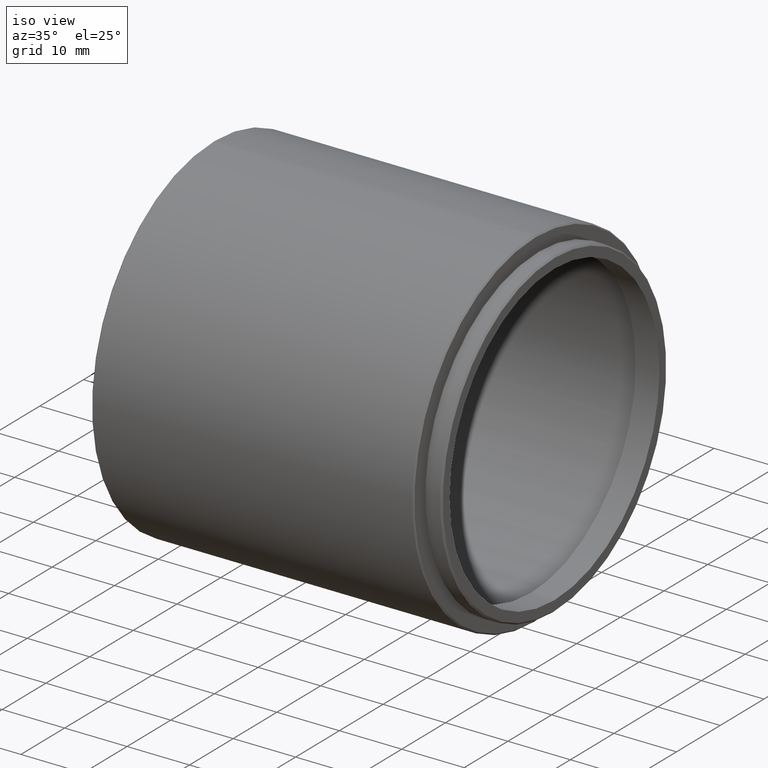
[diagram: clean part render]
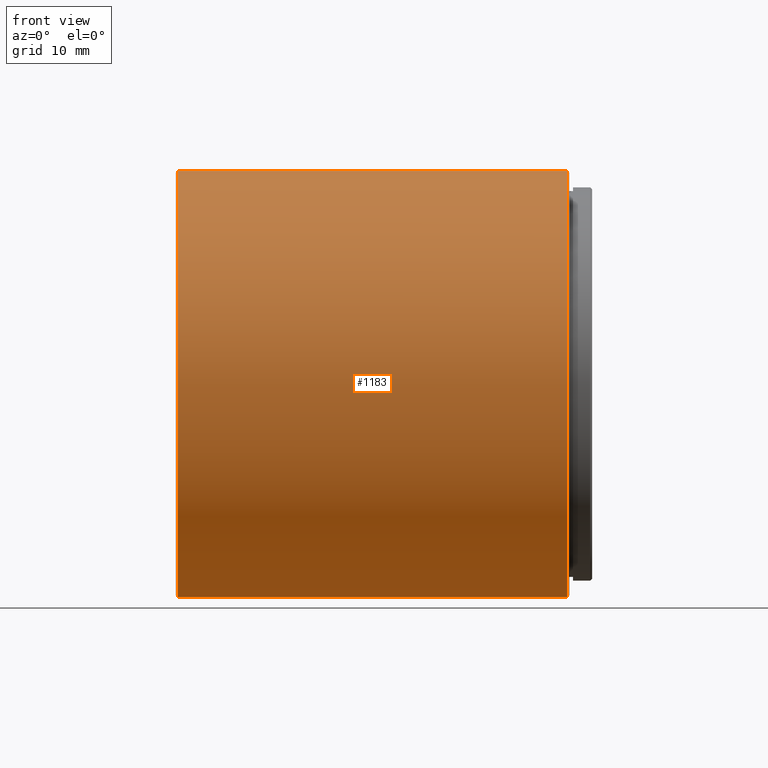
[diagram: tour spotlight — one face highlighted and labeled with its STEP entity id]
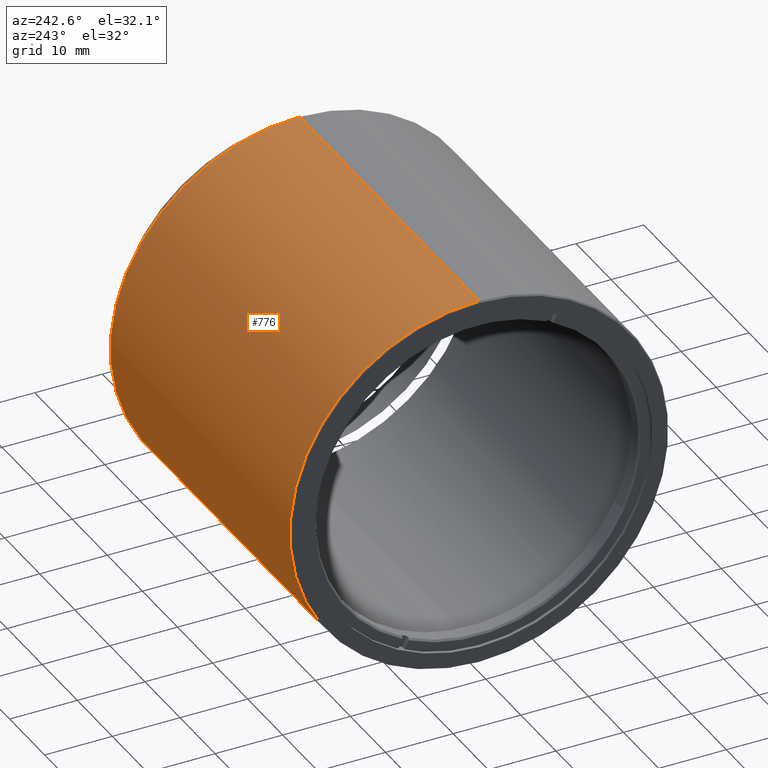
[diagram: tour spotlight — one face highlighted and labeled with its STEP entity id]
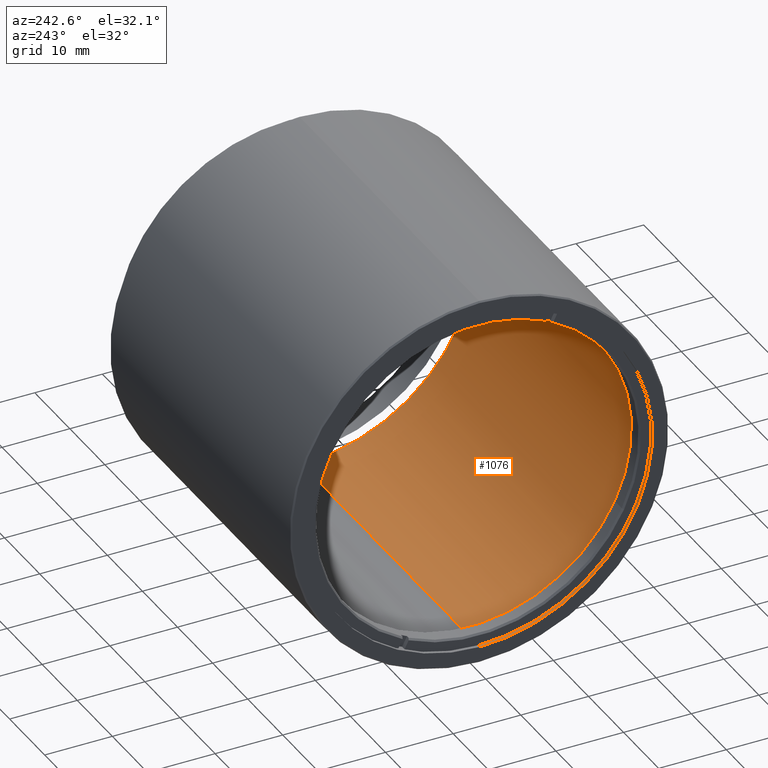
[diagram: tour spotlight — one face highlighted and labeled with its STEP entity id]
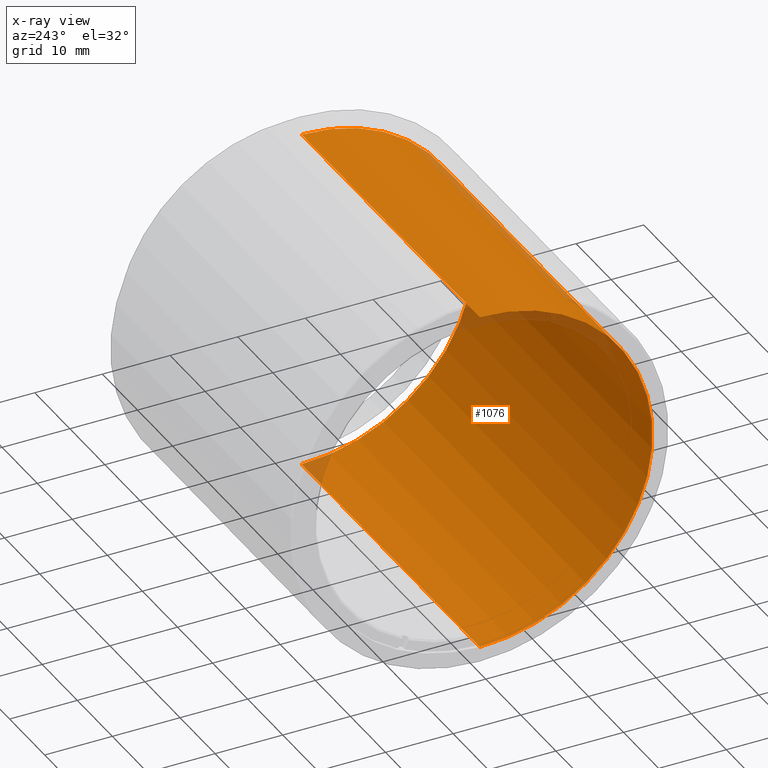
[diagram: x-ray of the same camera — body ghosted, this tour face saturated]
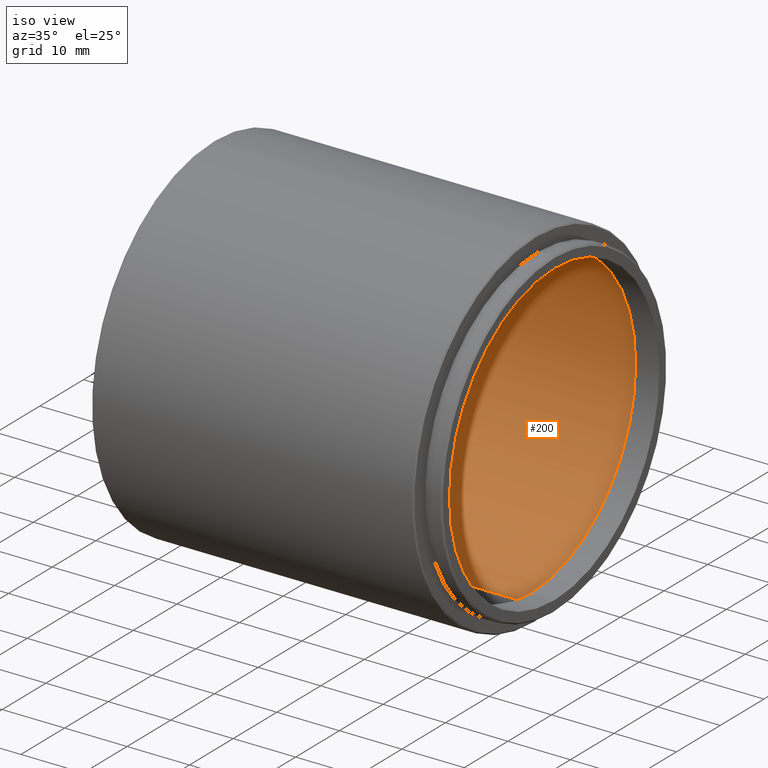
[diagram: tour spotlight — one face highlighted and labeled with its STEP entity id]
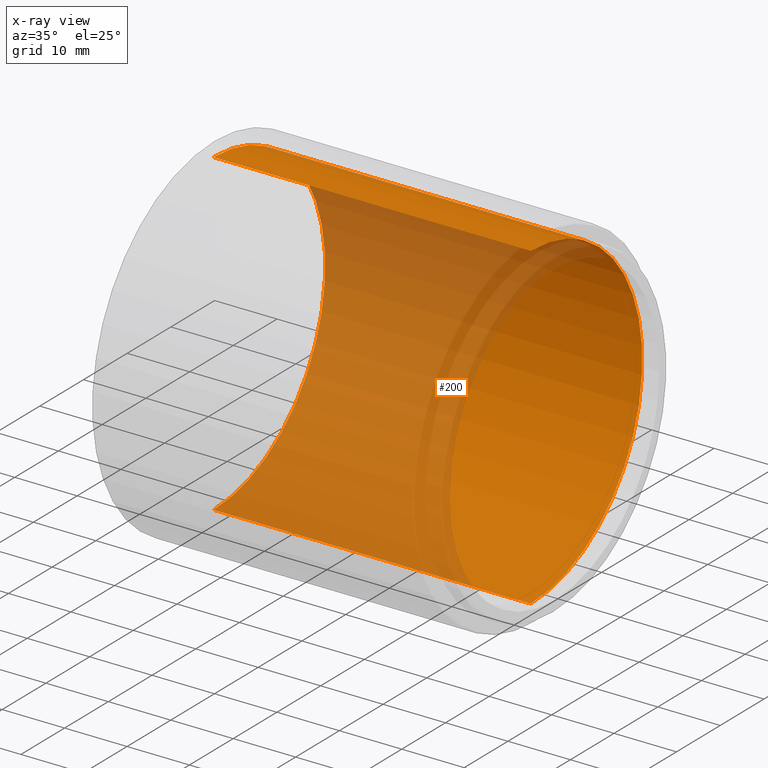
[diagram: x-ray of the same camera — body ghosted, this tour face saturated]
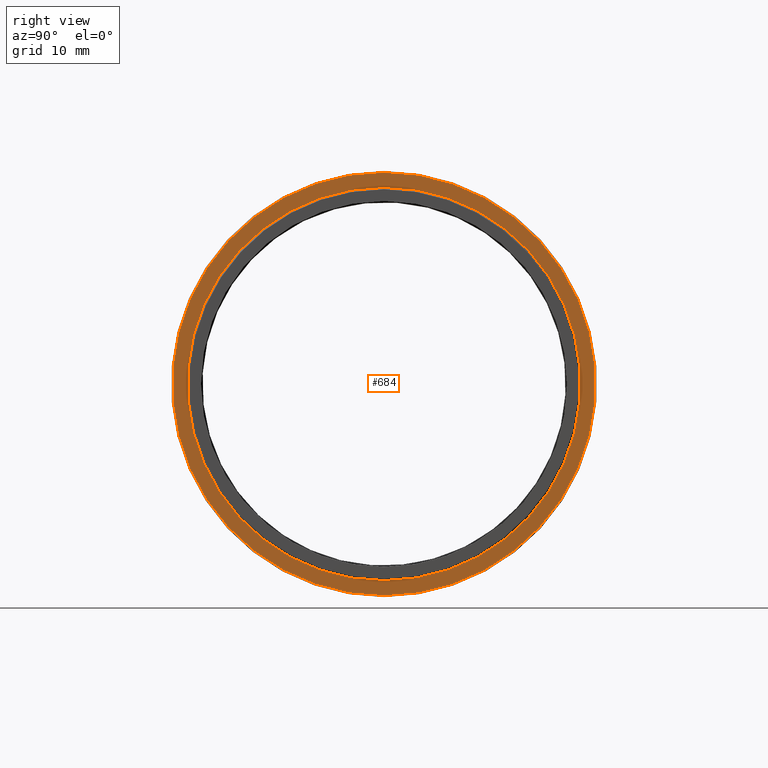
[diagram: tour spotlight — one face highlighted and labeled with its STEP entity id]
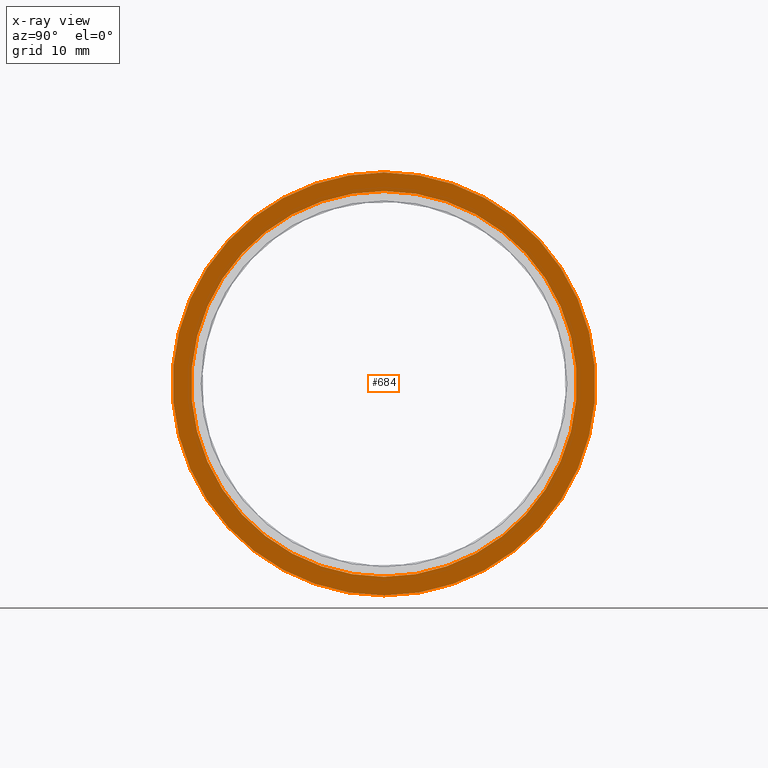
[diagram: x-ray of the same camera — body ghosted, this tour face saturated]
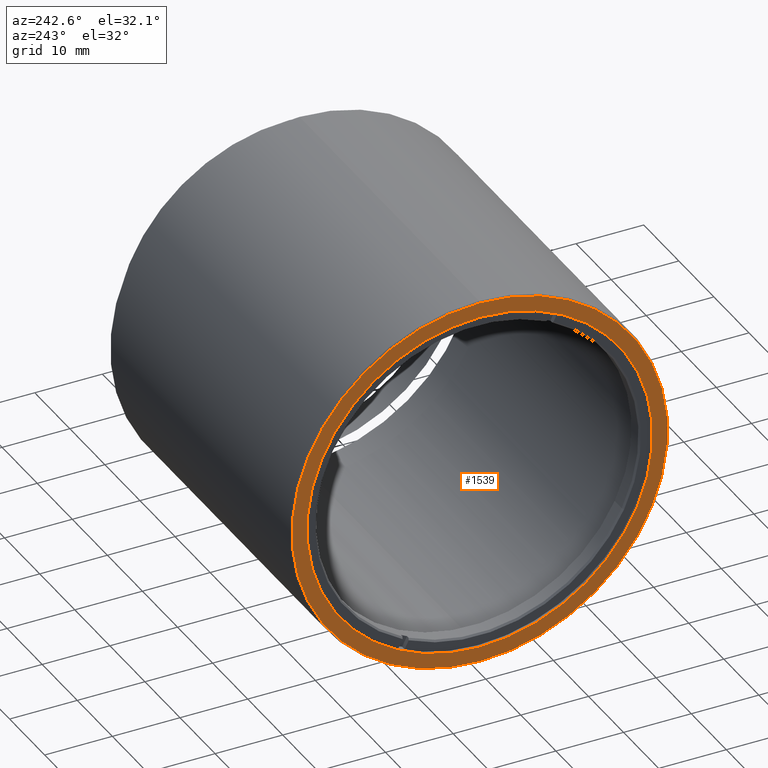
[diagram: tour spotlight — one face highlighted and labeled with its STEP entity id]
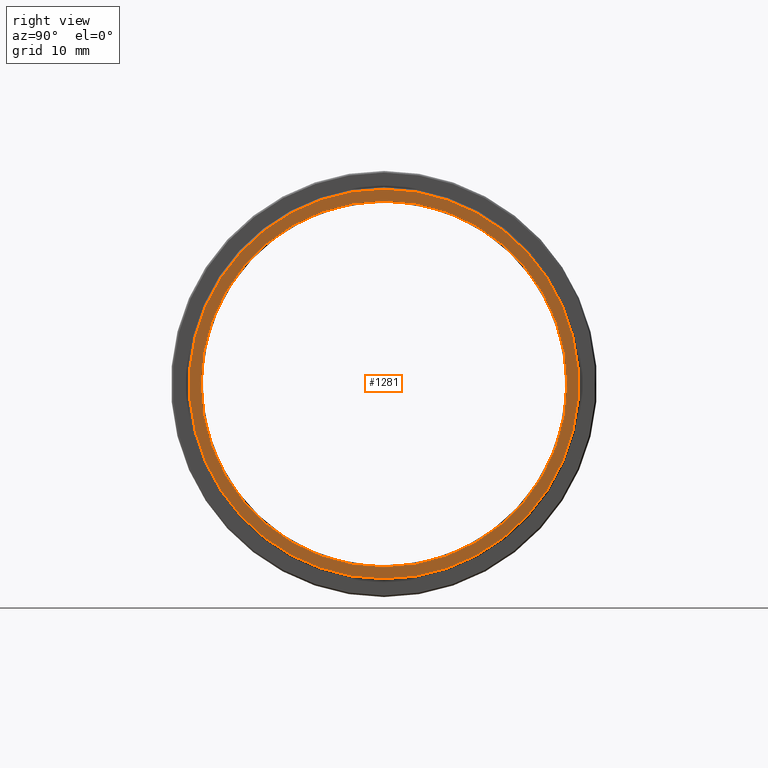
[diagram: tour spotlight — one face highlighted and labeled with its STEP entity id]
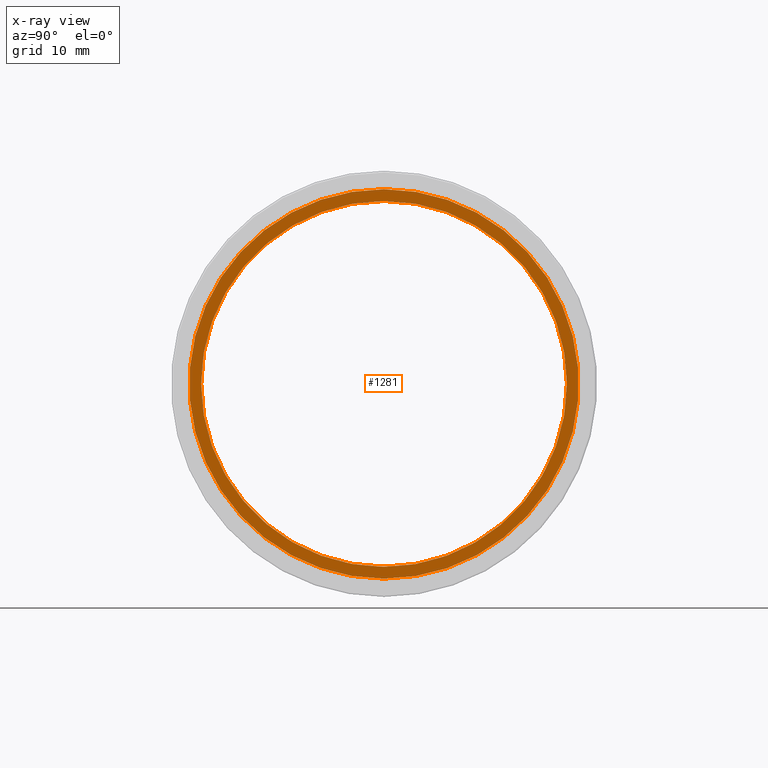
[diagram: x-ray of the same camera — body ghosted, this tour face saturated]
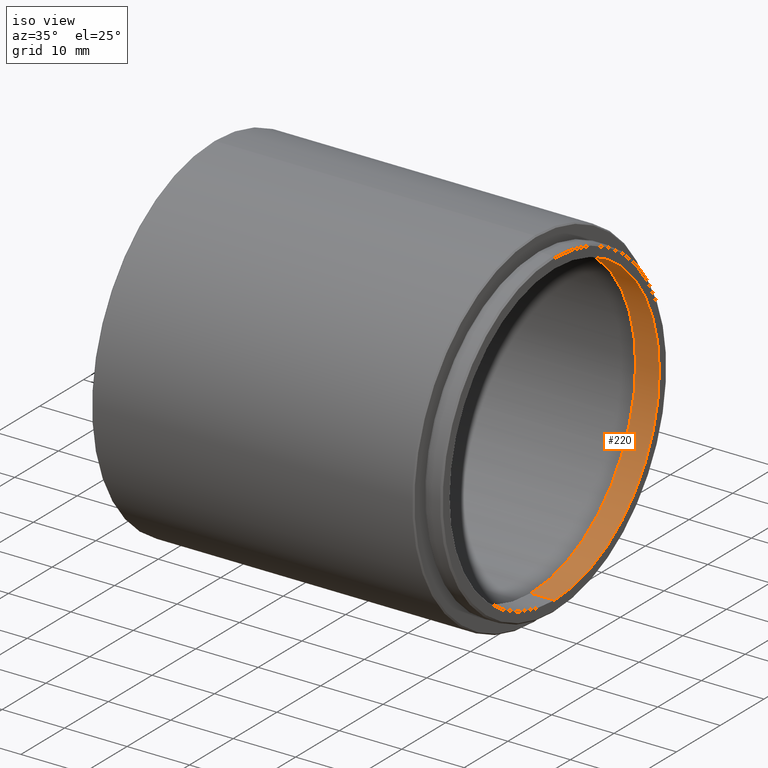
[diagram: tour spotlight — one face highlighted and labeled with its STEP entity id]
A machine part: a face-by-face anatomy tour. The part has 34 B-rep faces; the first image is the clean iso view, then the 8 largest visible faces are spotlighted one at a time (largest first), each with its STEP entity span.

Face 1 — front view, entity #1183. In plain terms, the highlighted cylindrical surface (partial cylindrical patch) has radius 27.95 mm, axis along (-1, -0, -0).
Definition (entity closure, byte-faithful):
#10 = DIRECTION ( 'NONE',  ( -1.000000000000000000, -0.000000000000000000, -0.000000000000000000 ) ) ;
#81 = EDGE_CURVE ( 'NONE', #143, #145, #1408, .T. ) ;
#115 = CARTESIAN_POINT ( 'NONE',  ( 3.326000000000004952, -20.10857142857141966, 27.94999999999999929 ) ) ;
#143 = VERTEX_POINT ( 'NONE', #115 ) ;
#145 = VERTEX_POINT ( 'NONE', #1188 ) ;
#148 = EDGE_CURVE ( 'NONE', #1171, #143, #1034, .T. ) ;
#263 = CARTESIAN_POINT ( 'NONE',  ( -47.87400000000003075, -20.10857142857141611, -27.94999999999999929 ) ) ;
#281 = EDGE_CURVE ( 'NONE', #1171, #310, #1222, .T. ) ;
#310 = VERTEX_POINT ( 'NONE', #263 ) ;
#384 = VECTOR ( 'NONE', #10, 1000.000000000000000 ) ;
#417 = CYLINDRICAL_SURFACE ( 'NONE', #1550, 27.94999999999999929 ) ;
#561 = ORIENTED_EDGE ( 'NONE', *, *, #81, .T. ) ;
#633 = AXIS2_PLACEMENT_3D ( 'NONE', #1039, #1407, #1389 ) ;
#647 = CARTESIAN_POINT ( 'NONE',  ( 3.326000000000004952, -20.10857142857141611, -27.94999999999999929 ) ) ;
#717 = ORIENTED_EDGE ( 'NONE', *, *, #148, .T. ) ;
#751 = ORIENTED_EDGE ( 'NONE', *, *, #1124, .T. ) ;
#784 = CARTESIAN_POINT ( 'NONE',  ( 3.525999999999982926, -20.10857142857141966, 0.000000000000000000 ) ) ;
#791 = ORIENTED_EDGE ( 'NONE', *, *, #281, .F. ) ;
#852 = VECTOR ( 'NONE', #1546, 1000.000000000000000 ) ;
#874 = CARTESIAN_POINT ( 'NONE',  ( 3.525999999999982926, -20.10857142857141611, -27.94999999999999929 ) ) ;
#899 = DIRECTION ( 'NONE',  ( 0.000000000000000000, 0.000000000000000000, 1.000000000000000000 ) ) ;
#917 = DIRECTION ( 'NONE',  ( -1.000000000000000000, -0.000000000000000000, -0.000000000000000000 ) ) ;
#1034 = CIRCLE ( 'NONE', #1578, 27.94999999999999929 ) ;
#1039 = CARTESIAN_POINT ( 'NONE',  ( -47.87400000000003075, -20.10857142857141966, 0.000000000000000000 ) ) ;
#1124 = EDGE_CURVE ( 'NONE', #145, #310, #1479, .T. ) ;
#1171 = VERTEX_POINT ( 'NONE', #647 ) ;
#1183 = ADVANCED_FACE ( 'NONE', ( #1255 ), #417, .T. ) ;
#1188 = CARTESIAN_POINT ( 'NONE',  ( -47.87400000000003075, -20.10857142857141966, 27.94999999999999929 ) ) ;
#1213 = CARTESIAN_POINT ( 'NONE',  ( 3.326000000000004952, -20.10857142857141966, 0.000000000000000000 ) ) ;
#1222 = LINE ( 'NONE', #874, #384 ) ;
#1255 = FACE_OUTER_BOUND ( 'NONE', #1263, .T. ) ;
#1263 = EDGE_LOOP ( 'NONE', ( #791, #717, #561, #751 ) ) ;
#1331 = DIRECTION ( 'NONE',  ( -1.000000000000000000, 0.000000000000000000, 0.000000000000000000 ) ) ;
#1342 = DIRECTION ( 'NONE',  ( 0.000000000000000000, 0.000000000000000000, -1.000000000000000000 ) ) ;
#1389 = DIRECTION ( 'NONE',  ( 0.000000000000000000, 0.000000000000000000, 1.000000000000000000 ) ) ;
#1407 = DIRECTION ( 'NONE',  ( 1.000000000000000000, 0.000000000000000000, 0.000000000000000000 ) ) ;
#1408 = LINE ( 'NONE', #1430, #852 ) ;
#1430 = CARTESIAN_POINT ( 'NONE',  ( 3.525999999999982926, -20.10857142857141966, 27.94999999999999929 ) ) ;
#1479 = CIRCLE ( 'NONE', #633, 27.94999999999999929 ) ;
#1546 = DIRECTION ( 'NONE',  ( -1.000000000000000000, -0.000000000000000000, -0.000000000000000000 ) ) ;
#1550 = AXIS2_PLACEMENT_3D ( 'NONE', #784, #917, #899 ) ;
#1578 = AXIS2_PLACEMENT_3D ( 'NONE', #1213, #1331, #1342 ) ;

Face 2 — auxiliary view, entity #776. In plain terms, the highlighted cylindrical surface (partial cylindrical patch) has radius 27.95 mm, axis along (-1, -0, -0).
Definition (entity closure, byte-faithful):
#10 = DIRECTION ( 'NONE',  ( -1.000000000000000000, -0.000000000000000000, -0.000000000000000000 ) ) ;
#81 = EDGE_CURVE ( 'NONE', #143, #145, #1408, .T. ) ;
#109 = CARTESIAN_POINT ( 'NONE',  ( -47.87400000000003075, -20.10857142857141966, 0.000000000000000000 ) ) ;
#115 = CARTESIAN_POINT ( 'NONE',  ( 3.326000000000004952, -20.10857142857141966, 27.94999999999999929 ) ) ;
#143 = VERTEX_POINT ( 'NONE', #115 ) ;
#145 = VERTEX_POINT ( 'NONE', #1188 ) ;
#192 = EDGE_CURVE ( 'NONE', #310, #145, #284, .T. ) ;
#263 = CARTESIAN_POINT ( 'NONE',  ( -47.87400000000003075, -20.10857142857141611, -27.94999999999999929 ) ) ;
#281 = EDGE_CURVE ( 'NONE', #1171, #310, #1222, .T. ) ;
#284 = CIRCLE ( 'NONE', #1356, 27.94999999999999929 ) ;
#310 = VERTEX_POINT ( 'NONE', #263 ) ;
#384 = VECTOR ( 'NONE', #10, 1000.000000000000000 ) ;
#389 = DIRECTION ( 'NONE',  ( 0.000000000000000000, 0.000000000000000000, 1.000000000000000000 ) ) ;
#502 = CARTESIAN_POINT ( 'NONE',  ( 3.525999999999982926, -20.10857142857141966, 0.000000000000000000 ) ) ;
#533 = AXIS2_PLACEMENT_3D ( 'NONE', #967, #1085, #1332 ) ;
#632 = CIRCLE ( 'NONE', #533, 27.94999999999999929 ) ;
#634 = FACE_OUTER_BOUND ( 'NONE', #753, .T. ) ;
#635 = DIRECTION ( 'NONE',  ( -1.000000000000000000, -0.000000000000000000, -0.000000000000000000 ) ) ;
#647 = CARTESIAN_POINT ( 'NONE',  ( 3.326000000000004952, -20.10857142857141611, -27.94999999999999929 ) ) ;
#653 = CYLINDRICAL_SURFACE ( 'NONE', #1289, 27.94999999999999929 ) ;
#753 = EDGE_LOOP ( 'NONE', ( #1246, #1210, #1284, #1261 ) ) ;
#776 = ADVANCED_FACE ( 'NONE', ( #634 ), #653, .T. ) ;
#852 = VECTOR ( 'NONE', #1546, 1000.000000000000000 ) ;
#874 = CARTESIAN_POINT ( 'NONE',  ( 3.525999999999982926, -20.10857142857141611, -27.94999999999999929 ) ) ;
#962 = DIRECTION ( 'NONE',  ( 0.000000000000000000, 0.000000000000000000, 1.000000000000000000 ) ) ;
#967 = CARTESIAN_POINT ( 'NONE',  ( 3.326000000000004952, -20.10857142857141966, 0.000000000000000000 ) ) ;
#1085 = DIRECTION ( 'NONE',  ( -1.000000000000000000, 0.000000000000000000, 0.000000000000000000 ) ) ;
#1171 = VERTEX_POINT ( 'NONE', #647 ) ;
#1188 = CARTESIAN_POINT ( 'NONE',  ( -47.87400000000003075, -20.10857142857141966, 27.94999999999999929 ) ) ;
#1210 = ORIENTED_EDGE ( 'NONE', *, *, #281, .T. ) ;
#1222 = LINE ( 'NONE', #874, #384 ) ;
#1246 = ORIENTED_EDGE ( 'NONE', *, *, #1309, .T. ) ;
#1261 = ORIENTED_EDGE ( 'NONE', *, *, #81, .F. ) ;
#1284 = ORIENTED_EDGE ( 'NONE', *, *, #192, .T. ) ;
#1289 = AXIS2_PLACEMENT_3D ( 'NONE', #502, #635, #389 ) ;
#1309 = EDGE_CURVE ( 'NONE', #143, #1171, #632, .T. ) ;
#1332 = DIRECTION ( 'NONE',  ( 0.000000000000000000, 0.000000000000000000, -1.000000000000000000 ) ) ;
#1356 = AXIS2_PLACEMENT_3D ( 'NONE', #109, #1459, #962 ) ;
#1408 = LINE ( 'NONE', #1430, #852 ) ;
#1430 = CARTESIAN_POINT ( 'NONE',  ( 3.525999999999982926, -20.10857142857141966, 27.94999999999999929 ) ) ;
#1459 = DIRECTION ( 'NONE',  ( 1.000000000000000000, 0.000000000000000000, 0.000000000000000000 ) ) ;
#1546 = DIRECTION ( 'NONE',  ( -1.000000000000000000, -0.000000000000000000, -0.000000000000000000 ) ) ;

Face 3 — auxiliary view, entity #1076. An x-ray twin of the same camera follows (body ghosted, this face saturated) — the face is partly hidden behind the body. In plain terms, the highlighted cylindrical surface (partial cylindrical patch) has radius 25.525 mm, axis along (1, -0, -0).
Definition (entity closure, byte-faithful):
#33 = CIRCLE ( 'NONE', #1019, 25.52499999999999858 ) ;
#44 = CIRCLE ( 'NONE', #1361, 25.52499999999999858 ) ;
#88 = DIRECTION ( 'NONE',  ( 0.000000000000000000, 0.000000000000000000, 1.000000000000000000 ) ) ;
#98 = DIRECTION ( 'NONE',  ( -1.000000000000000000, 0.000000000000000000, 0.000000000000000000 ) ) ;
#187 = VERTEX_POINT ( 'NONE', #237 ) ;
#190 = ORIENTED_EDGE ( 'NONE', *, *, #537, .F. ) ;
#193 = CARTESIAN_POINT ( 'NONE',  ( -48.07400000000001228, -20.10857142857141611, 25.52499999999999858 ) ) ;
#237 = CARTESIAN_POINT ( 'NONE',  ( 2.725999999999982659, -20.10857142857141611, 25.52499999999999858 ) ) ;
#242 = LINE ( 'NONE', #193, #650 ) ;
#294 = DIRECTION ( 'NONE',  ( 0.000000000000000000, 0.000000000000000000, 1.000000000000000000 ) ) ;
#489 = FACE_OUTER_BOUND ( 'NONE', #1411, .T. ) ;
#537 = EDGE_CURVE ( 'NONE', #918, #187, #33, .T. ) ;
#564 = EDGE_CURVE ( 'NONE', #914, #918, #1368, .T. ) ;
#639 = ORIENTED_EDGE ( 'NONE', *, *, #564, .F. ) ;
#650 = VECTOR ( 'NONE', #1174, 1000.000000000000000 ) ;
#664 = AXIS2_PLACEMENT_3D ( 'NONE', #1221, #1106, #1161 ) ;
#688 = CARTESIAN_POINT ( 'NONE',  ( -48.07400000000001228, -20.10857142857141611, 25.52499999999999858 ) ) ;
#763 = CARTESIAN_POINT ( 'NONE',  ( -48.07400000000001228, -20.10857142857141966, 0.000000000000000000 ) ) ;
#801 = CARTESIAN_POINT ( 'NONE',  ( 2.725999999999982659, -20.10857142857141966, -25.52499999999999858 ) ) ;
#814 = ORIENTED_EDGE ( 'NONE', *, *, #1202, .T. ) ;
#914 = VERTEX_POINT ( 'NONE', #1148 ) ;
#918 = VERTEX_POINT ( 'NONE', #801 ) ;
#960 = ORIENTED_EDGE ( 'NONE', *, *, #1523, .T. ) ;
#1019 = AXIS2_PLACEMENT_3D ( 'NONE', #1314, #98, #88 ) ;
#1076 = ADVANCED_FACE ( 'NONE', ( #489 ), #1577, .F. ) ;
#1106 = DIRECTION ( 'NONE',  ( 1.000000000000000000, -0.000000000000000000, -0.000000000000000000 ) ) ;
#1148 = CARTESIAN_POINT ( 'NONE',  ( -48.07400000000001228, -20.10857142857141966, -25.52499999999999858 ) ) ;
#1151 = DIRECTION ( 'NONE',  ( -1.000000000000000000, 0.000000000000000000, 0.000000000000000000 ) ) ;
#1161 = DIRECTION ( 'NONE',  ( 0.000000000000000000, 0.000000000000000000, -1.000000000000000000 ) ) ;
#1174 = DIRECTION ( 'NONE',  ( 1.000000000000000000, -0.000000000000000000, -0.000000000000000000 ) ) ;
#1194 = CARTESIAN_POINT ( 'NONE',  ( -48.07400000000001228, -20.10857142857141966, -25.52499999999999858 ) ) ;
#1202 = EDGE_CURVE ( 'NONE', #1227, #187, #242, .T. ) ;
#1207 = DIRECTION ( 'NONE',  ( 1.000000000000000000, -0.000000000000000000, -0.000000000000000000 ) ) ;
#1221 = CARTESIAN_POINT ( 'NONE',  ( -48.07400000000001228, -20.10857142857141966, 0.000000000000000000 ) ) ;
#1227 = VERTEX_POINT ( 'NONE', #688 ) ;
#1274 = VECTOR ( 'NONE', #1207, 1000.000000000000000 ) ;
#1314 = CARTESIAN_POINT ( 'NONE',  ( 2.725999999999982659, -20.10857142857141966, 0.000000000000000000 ) ) ;
#1361 = AXIS2_PLACEMENT_3D ( 'NONE', #763, #1151, #294 ) ;
#1368 = LINE ( 'NONE', #1194, #1274 ) ;
#1411 = EDGE_LOOP ( 'NONE', ( #960, #814, #190, #639 ) ) ;
#1523 = EDGE_CURVE ( 'NONE', #914, #1227, #44, .T. ) ;
#1577 = CYLINDRICAL_SURFACE ( 'NONE', #664, 25.52499999999999858 ) ;

Face 4 — iso view, entity #200. An x-ray twin of the same camera follows (body ghosted, this face saturated) — the face is partly hidden behind the body. In plain terms, the highlighted cylindrical surface (partial cylindrical patch) has radius 25.525 mm, axis along (1, -0, -0).
Definition (entity closure, byte-faithful):
#131 = EDGE_CURVE ( 'NONE', #187, #918, #1201, .T. ) ;
#187 = VERTEX_POINT ( 'NONE', #237 ) ;
#193 = CARTESIAN_POINT ( 'NONE',  ( -48.07400000000001228, -20.10857142857141611, 25.52499999999999858 ) ) ;
#200 = ADVANCED_FACE ( 'NONE', ( #1355 ), #811, .F. ) ;
#237 = CARTESIAN_POINT ( 'NONE',  ( 2.725999999999982659, -20.10857142857141611, 25.52499999999999858 ) ) ;
#242 = LINE ( 'NONE', #193, #650 ) ;
#248 = DIRECTION ( 'NONE',  ( 1.000000000000000000, -0.000000000000000000, -0.000000000000000000 ) ) ;
#254 = AXIS2_PLACEMENT_3D ( 'NONE', #1103, #248, #483 ) ;
#282 = AXIS2_PLACEMENT_3D ( 'NONE', #1139, #762, #530 ) ;
#361 = DIRECTION ( 'NONE',  ( -1.000000000000000000, 0.000000000000000000, 0.000000000000000000 ) ) ;
#410 = EDGE_CURVE ( 'NONE', #1227, #914, #475, .T. ) ;
#428 = ORIENTED_EDGE ( 'NONE', *, *, #410, .T. ) ;
#475 = CIRCLE ( 'NONE', #282, 25.52499999999999858 ) ;
#483 = DIRECTION ( 'NONE',  ( 0.000000000000000000, 0.000000000000000000, -1.000000000000000000 ) ) ;
#530 = DIRECTION ( 'NONE',  ( 0.000000000000000000, 0.000000000000000000, 1.000000000000000000 ) ) ;
#564 = EDGE_CURVE ( 'NONE', #914, #918, #1368, .T. ) ;
#650 = VECTOR ( 'NONE', #1174, 1000.000000000000000 ) ;
#688 = CARTESIAN_POINT ( 'NONE',  ( -48.07400000000001228, -20.10857142857141611, 25.52499999999999858 ) ) ;
#762 = DIRECTION ( 'NONE',  ( -1.000000000000000000, 0.000000000000000000, 0.000000000000000000 ) ) ;
#801 = CARTESIAN_POINT ( 'NONE',  ( 2.725999999999982659, -20.10857142857141966, -25.52499999999999858 ) ) ;
#811 = CYLINDRICAL_SURFACE ( 'NONE', #254, 25.52499999999999858 ) ;
#914 = VERTEX_POINT ( 'NONE', #1148 ) ;
#918 = VERTEX_POINT ( 'NONE', #801 ) ;
#977 = ORIENTED_EDGE ( 'NONE', *, *, #1202, .F. ) ;
#1089 = CARTESIAN_POINT ( 'NONE',  ( 2.725999999999982659, -20.10857142857141966, 0.000000000000000000 ) ) ;
#1103 = CARTESIAN_POINT ( 'NONE',  ( -48.07400000000001228, -20.10857142857141966, 0.000000000000000000 ) ) ;
#1139 = CARTESIAN_POINT ( 'NONE',  ( -48.07400000000001228, -20.10857142857141966, 0.000000000000000000 ) ) ;
#1148 = CARTESIAN_POINT ( 'NONE',  ( -48.07400000000001228, -20.10857142857141966, -25.52499999999999858 ) ) ;
#1174 = DIRECTION ( 'NONE',  ( 1.000000000000000000, -0.000000000000000000, -0.000000000000000000 ) ) ;
#1192 = AXIS2_PLACEMENT_3D ( 'NONE', #1089, #361, #1584 ) ;
#1194 = CARTESIAN_POINT ( 'NONE',  ( -48.07400000000001228, -20.10857142857141966, -25.52499999999999858 ) ) ;
#1201 = CIRCLE ( 'NONE', #1192, 25.52499999999999858 ) ;
#1202 = EDGE_CURVE ( 'NONE', #1227, #187, #242, .T. ) ;
#1207 = DIRECTION ( 'NONE',  ( 1.000000000000000000, -0.000000000000000000, -0.000000000000000000 ) ) ;
#1227 = VERTEX_POINT ( 'NONE', #688 ) ;
#1274 = VECTOR ( 'NONE', #1207, 1000.000000000000000 ) ;
#1355 = FACE_OUTER_BOUND ( 'NONE', #1357, .T. ) ;
#1357 = EDGE_LOOP ( 'NONE', ( #977, #428, #1532, #1394 ) ) ;
#1368 = LINE ( 'NONE', #1194, #1274 ) ;
#1394 = ORIENTED_EDGE ( 'NONE', *, *, #131, .F. ) ;
#1532 = ORIENTED_EDGE ( 'NONE', *, *, #564, .T. ) ;
#1584 = DIRECTION ( 'NONE',  ( 0.000000000000000000, 0.000000000000000000, 1.000000000000000000 ) ) ;

Face 5 — right view, entity #684. An x-ray twin of the same camera follows (body ghosted, this face saturated) — the face is partly hidden behind the body. In plain terms, the highlighted planar face has unit normal (1, 0, 0).
Definition (entity closure, byte-faithful):
#35 = AXIS2_PLACEMENT_3D ( 'NONE', #947, #966, #209 ) ;
#69 = CIRCLE ( 'NONE', #1455, 27.75000000000002132 ) ;
#72 = CARTESIAN_POINT ( 'NONE',  ( 3.525999999999982926, -20.10857142857141966, 27.75000000000002132 ) ) ;
#73 = CARTESIAN_POINT ( 'NONE',  ( 3.525999999999982926, -20.10857142857141611, -27.75000000000002132 ) ) ;
#95 = DIRECTION ( 'NONE',  ( 1.000000000000000000, 0.000000000000000000, 0.000000000000000000 ) ) ;
#97 = AXIS2_PLACEMENT_3D ( 'NONE', #625, #1472, #869 ) ;
#147 = ORIENTED_EDGE ( 'NONE', *, *, #1464, .F. ) ;
#195 = CARTESIAN_POINT ( 'NONE',  ( 3.525999999999982926, -20.10857142857141966, 0.000000000000000000 ) ) ;
#209 = DIRECTION ( 'NONE',  ( 0.000000000000000000, 0.000000000000000000, -1.000000000000000000 ) ) ;
#256 = CARTESIAN_POINT ( 'NONE',  ( 3.525999999999982926, -20.10857142857141966, 0.000000000000000000 ) ) ;
#261 = PLANE ( 'NONE',  #512 ) ;
#447 = CARTESIAN_POINT ( 'NONE',  ( 3.525999999999982926, -20.10857142857141966, 0.000000000000000000 ) ) ;
#457 = EDGE_CURVE ( 'NONE', #1265, #459, #69, .T. ) ;
#459 = VERTEX_POINT ( 'NONE', #72 ) ;
#512 = AXIS2_PLACEMENT_3D ( 'NONE', #256, #841, #1098 ) ;
#545 = ORIENTED_EDGE ( 'NONE', *, *, #1262, .F. ) ;
#554 = EDGE_CURVE ( 'NONE', #459, #1265, #1052, .T. ) ;
#557 = DIRECTION ( 'NONE',  ( 0.000000000000000000, 0.000000000000000000, -1.000000000000000000 ) ) ;
#583 = EDGE_LOOP ( 'NONE', ( #1362, #1374 ) ) ;
#615 = CARTESIAN_POINT ( 'NONE',  ( 3.525999999999982926, -20.10857142857141611, -25.30000000000000071 ) ) ;
#625 = CARTESIAN_POINT ( 'NONE',  ( 3.525999999999982926, -20.10857142857141966, 0.000000000000000000 ) ) ;
#629 = VERTEX_POINT ( 'NONE', #1571 ) ;
#673 = CIRCLE ( 'NONE', #1303, 25.30000000000000071 ) ;
#684 = ADVANCED_FACE ( 'NONE', ( #986, #1198 ), #261, .T. ) ;
#841 = DIRECTION ( 'NONE',  ( 1.000000000000000000, 0.000000000000000000, 0.000000000000000000 ) ) ;
#869 = DIRECTION ( 'NONE',  ( 0.000000000000000000, 0.000000000000000000, -1.000000000000000000 ) ) ;
#936 = DIRECTION ( 'NONE',  ( 0.000000000000000000, 0.000000000000000000, -1.000000000000000000 ) ) ;
#947 = CARTESIAN_POINT ( 'NONE',  ( 3.525999999999982926, -20.10857142857141966, 0.000000000000000000 ) ) ;
#966 = DIRECTION ( 'NONE',  ( 1.000000000000000000, 0.000000000000000000, 0.000000000000000000 ) ) ;
#986 = FACE_OUTER_BOUND ( 'NONE', #583, .T. ) ;
#1052 = CIRCLE ( 'NONE', #35, 27.75000000000002132 ) ;
#1071 = DIRECTION ( 'NONE',  ( 1.000000000000000000, 0.000000000000000000, 0.000000000000000000 ) ) ;
#1098 = DIRECTION ( 'NONE',  ( 0.000000000000000000, 0.000000000000000000, -1.000000000000000000 ) ) ;
#1198 = FACE_BOUND ( 'NONE', #1470, .T. ) ;
#1262 = EDGE_CURVE ( 'NONE', #1492, #629, #673, .T. ) ;
#1265 = VERTEX_POINT ( 'NONE', #73 ) ;
#1292 = CIRCLE ( 'NONE', #97, 25.30000000000000071 ) ;
#1303 = AXIS2_PLACEMENT_3D ( 'NONE', #447, #95, #936 ) ;
#1362 = ORIENTED_EDGE ( 'NONE', *, *, #554, .T. ) ;
#1374 = ORIENTED_EDGE ( 'NONE', *, *, #457, .T. ) ;
#1455 = AXIS2_PLACEMENT_3D ( 'NONE', #195, #1071, #557 ) ;
#1464 = EDGE_CURVE ( 'NONE', #629, #1492, #1292, .T. ) ;
#1470 = EDGE_LOOP ( 'NONE', ( #147, #545 ) ) ;
#1472 = DIRECTION ( 'NONE',  ( 1.000000000000000000, 0.000000000000000000, 0.000000000000000000 ) ) ;
#1492 = VERTEX_POINT ( 'NONE', #615 ) ;
#1571 = CARTESIAN_POINT ( 'NONE',  ( 3.525999999999982926, -20.10857142857141966, 25.30000000000000071 ) ) ;

Face 6 — auxiliary view, entity #1539. In plain terms, the highlighted planar face has unit normal (-1, 0, 0).
Definition (entity closure, byte-faithful):
#44 = CIRCLE ( 'NONE', #1361, 25.52499999999999858 ) ;
#163 = PLANE ( 'NONE',  #1158 ) ;
#176 = CIRCLE ( 'NONE', #683, 27.75000000000000711 ) ;
#282 = AXIS2_PLACEMENT_3D ( 'NONE', #1139, #762, #530 ) ;
#294 = DIRECTION ( 'NONE',  ( 0.000000000000000000, 0.000000000000000000, 1.000000000000000000 ) ) ;
#324 = EDGE_LOOP ( 'NONE', ( #1526, #406 ) ) ;
#371 = EDGE_LOOP ( 'NONE', ( #1299, #462 ) ) ;
#406 = ORIENTED_EDGE ( 'NONE', *, *, #410, .F. ) ;
#410 = EDGE_CURVE ( 'NONE', #1227, #914, #475, .T. ) ;
#462 = ORIENTED_EDGE ( 'NONE', *, *, #595, .T. ) ;
#475 = CIRCLE ( 'NONE', #282, 25.52499999999999858 ) ;
#488 = CIRCLE ( 'NONE', #959, 27.75000000000000711 ) ;
#530 = DIRECTION ( 'NONE',  ( 0.000000000000000000, 0.000000000000000000, 1.000000000000000000 ) ) ;
#595 = EDGE_CURVE ( 'NONE', #1062, #1245, #176, .T. ) ;
#613 = FACE_OUTER_BOUND ( 'NONE', #371, .T. ) ;
#637 = CARTESIAN_POINT ( 'NONE',  ( -48.07400000000001228, -20.10857142857141966, 0.000000000000000000 ) ) ;
#683 = AXIS2_PLACEMENT_3D ( 'NONE', #1308, #1444, #1078 ) ;
#688 = CARTESIAN_POINT ( 'NONE',  ( -48.07400000000001228, -20.10857142857141611, 25.52499999999999858 ) ) ;
#699 = EDGE_CURVE ( 'NONE', #1245, #1062, #488, .T. ) ;
#762 = DIRECTION ( 'NONE',  ( -1.000000000000000000, 0.000000000000000000, 0.000000000000000000 ) ) ;
#763 = CARTESIAN_POINT ( 'NONE',  ( -48.07400000000001228, -20.10857142857141966, 0.000000000000000000 ) ) ;
#797 = FACE_BOUND ( 'NONE', #324, .T. ) ;
#914 = VERTEX_POINT ( 'NONE', #1148 ) ;
#959 = AXIS2_PLACEMENT_3D ( 'NONE', #1336, #1450, #971 ) ;
#971 = DIRECTION ( 'NONE',  ( 0.000000000000000000, 0.000000000000000000, 1.000000000000000000 ) ) ;
#1062 = VERTEX_POINT ( 'NONE', #1232 ) ;
#1063 = CARTESIAN_POINT ( 'NONE',  ( -48.07400000000001228, -20.10857142857141966, -27.75000000000000711 ) ) ;
#1078 = DIRECTION ( 'NONE',  ( 0.000000000000000000, 0.000000000000000000, 1.000000000000000000 ) ) ;
#1139 = CARTESIAN_POINT ( 'NONE',  ( -48.07400000000001228, -20.10857142857141966, 0.000000000000000000 ) ) ;
#1140 = DIRECTION ( 'NONE',  ( 0.000000000000000000, 0.000000000000000000, 1.000000000000000000 ) ) ;
#1148 = CARTESIAN_POINT ( 'NONE',  ( -48.07400000000001228, -20.10857142857141966, -25.52499999999999858 ) ) ;
#1151 = DIRECTION ( 'NONE',  ( -1.000000000000000000, 0.000000000000000000, 0.000000000000000000 ) ) ;
#1158 = AXIS2_PLACEMENT_3D ( 'NONE', #637, #1504, #1140 ) ;
#1227 = VERTEX_POINT ( 'NONE', #688 ) ;
#1232 = CARTESIAN_POINT ( 'NONE',  ( -48.07400000000001228, -20.10857142857141611, 27.75000000000000711 ) ) ;
#1245 = VERTEX_POINT ( 'NONE', #1063 ) ;
#1299 = ORIENTED_EDGE ( 'NONE', *, *, #699, .T. ) ;
#1308 = CARTESIAN_POINT ( 'NONE',  ( -48.07400000000001228, -20.10857142857141966, 0.000000000000000000 ) ) ;
#1336 = CARTESIAN_POINT ( 'NONE',  ( -48.07400000000001228, -20.10857142857141966, 0.000000000000000000 ) ) ;
#1361 = AXIS2_PLACEMENT_3D ( 'NONE', #763, #1151, #294 ) ;
#1444 = DIRECTION ( 'NONE',  ( -1.000000000000000000, 0.000000000000000000, 0.000000000000000000 ) ) ;
#1450 = DIRECTION ( 'NONE',  ( -1.000000000000000000, 0.000000000000000000, 0.000000000000000000 ) ) ;
#1504 = DIRECTION ( 'NONE',  ( -1.000000000000000000, 0.000000000000000000, 0.000000000000000000 ) ) ;
#1523 = EDGE_CURVE ( 'NONE', #914, #1227, #44, .T. ) ;
#1526 = ORIENTED_EDGE ( 'NONE', *, *, #1523, .F. ) ;
#1539 = ADVANCED_FACE ( 'NONE', ( #613, #797 ), #163, .T. ) ;

Face 7 — right view, entity #1281. An x-ray twin of the same camera follows (body ghosted, this face saturated) — the face is partly hidden behind the body. In plain terms, the highlighted planar face has unit normal (1, 0, 0).
Definition (entity closure, byte-faithful):
#11 = FACE_OUTER_BOUND ( 'NONE', #391, .T. ) ;
#54 = EDGE_CURVE ( 'NONE', #916, #1321, #343, .T. ) ;
#94 = DIRECTION ( 'NONE',  ( 1.000000000000000000, 0.000000000000000000, 0.000000000000000000 ) ) ;
#104 = CARTESIAN_POINT ( 'NONE',  ( 6.525999999999982926, -20.10857142857141611, 24.00000000000000355 ) ) ;
#188 = DIRECTION ( 'NONE',  ( 0.000000000000000000, 0.000000000000000000, -1.000000000000000000 ) ) ;
#215 = DIRECTION ( 'NONE',  ( 0.000000000000000000, 0.000000000000000000, -1.000000000000000000 ) ) ;
#235 = AXIS2_PLACEMENT_3D ( 'NONE', #941, #1553, #188 ) ;
#252 = ORIENTED_EDGE ( 'NONE', *, *, #1548, .T. ) ;
#331 = CARTESIAN_POINT ( 'NONE',  ( 6.525999999999982926, -20.10857142857141966, 0.000000000000000000 ) ) ;
#343 = CIRCLE ( 'NONE', #859, 24.00000000000000355 ) ;
#391 = EDGE_LOOP ( 'NONE', ( #252, #1077 ) ) ;
#432 = AXIS2_PLACEMENT_3D ( 'NONE', #1518, #1399, #671 ) ;
#531 = CARTESIAN_POINT ( 'NONE',  ( 6.525999999999982926, -20.10857142857141966, 0.000000000000000000 ) ) ;
#558 = PLANE ( 'NONE',  #235 ) ;
#585 = ORIENTED_EDGE ( 'NONE', *, *, #928, .F. ) ;
#671 = DIRECTION ( 'NONE',  ( 0.000000000000000000, 0.000000000000000000, -1.000000000000000000 ) ) ;
#680 = VERTEX_POINT ( 'NONE', #1111 ) ;
#758 = DIRECTION ( 'NONE',  ( 0.000000000000000000, 0.000000000000000000, -1.000000000000000000 ) ) ;
#859 = AXIS2_PLACEMENT_3D ( 'NONE', #1540, #94, #1562 ) ;
#916 = VERTEX_POINT ( 'NONE', #1543 ) ;
#928 = EDGE_CURVE ( 'NONE', #1321, #916, #1405, .T. ) ;
#941 = CARTESIAN_POINT ( 'NONE',  ( 6.525999999999982926, -20.10857142857141966, 0.000000000000000000 ) ) ;
#943 = DIRECTION ( 'NONE',  ( 1.000000000000000000, 0.000000000000000000, 0.000000000000000000 ) ) ;
#1022 = CIRCLE ( 'NONE', #1398, 25.55000000000000426 ) ;
#1040 = EDGE_LOOP ( 'NONE', ( #1343, #585 ) ) ;
#1077 = ORIENTED_EDGE ( 'NONE', *, *, #1154, .T. ) ;
#1111 = CARTESIAN_POINT ( 'NONE',  ( 6.525999999999982926, -20.10857142857141966, 25.55000000000000426 ) ) ;
#1141 = FACE_BOUND ( 'NONE', #1040, .T. ) ;
#1154 = EDGE_CURVE ( 'NONE', #1447, #680, #1197, .T. ) ;
#1197 = CIRCLE ( 'NONE', #432, 25.55000000000000426 ) ;
#1231 = CARTESIAN_POINT ( 'NONE',  ( 6.525999999999982926, -20.10857142857141611, -25.55000000000000426 ) ) ;
#1281 = ADVANCED_FACE ( 'NONE', ( #11, #1141 ), #558, .T. ) ;
#1313 = AXIS2_PLACEMENT_3D ( 'NONE', #331, #943, #215 ) ;
#1321 = VERTEX_POINT ( 'NONE', #104 ) ;
#1343 = ORIENTED_EDGE ( 'NONE', *, *, #54, .F. ) ;
#1390 = DIRECTION ( 'NONE',  ( 1.000000000000000000, 0.000000000000000000, 0.000000000000000000 ) ) ;
#1398 = AXIS2_PLACEMENT_3D ( 'NONE', #531, #1390, #758 ) ;
#1399 = DIRECTION ( 'NONE',  ( 1.000000000000000000, 0.000000000000000000, 0.000000000000000000 ) ) ;
#1405 = CIRCLE ( 'NONE', #1313, 24.00000000000000355 ) ;
#1447 = VERTEX_POINT ( 'NONE', #1231 ) ;
#1518 = CARTESIAN_POINT ( 'NONE',  ( 6.525999999999982926, -20.10857142857141966, 0.000000000000000000 ) ) ;
#1540 = CARTESIAN_POINT ( 'NONE',  ( 6.525999999999982926, -20.10857142857141966, 0.000000000000000000 ) ) ;
#1543 = CARTESIAN_POINT ( 'NONE',  ( 6.525999999999982926, -20.10857142857141966, -24.00000000000000355 ) ) ;
#1548 = EDGE_CURVE ( 'NONE', #680, #1447, #1022, .T. ) ;
#1553 = DIRECTION ( 'NONE',  ( 1.000000000000000000, 0.000000000000000000, 0.000000000000000000 ) ) ;
#1562 = DIRECTION ( 'NONE',  ( 0.000000000000000000, 0.000000000000000000, -1.000000000000000000 ) ) ;

Face 8 — iso view, entity #220. In plain terms, the highlighted cylindrical surface (partial cylindrical patch) has radius 24 mm, axis along (1, -0, -0).
Definition (entity closure, byte-faithful):
#5 = CARTESIAN_POINT ( 'NONE',  ( 2.725999999999982659, -20.10857142857141611, 24.00000000000000355 ) ) ;
#54 = EDGE_CURVE ( 'NONE', #916, #1321, #343, .T. ) ;
#71 = CYLINDRICAL_SURFACE ( 'NONE', #1086, 24.00000000000000355 ) ;
#75 = ORIENTED_EDGE ( 'NONE', *, *, #216, .F. ) ;
#87 = VECTOR ( 'NONE', #1044, 1000.000000000000000 ) ;
#94 = DIRECTION ( 'NONE',  ( 1.000000000000000000, 0.000000000000000000, 0.000000000000000000 ) ) ;
#104 = CARTESIAN_POINT ( 'NONE',  ( 6.525999999999982926, -20.10857142857141611, 24.00000000000000355 ) ) ;
#216 = EDGE_CURVE ( 'NONE', #1410, #1473, #525, .T. ) ;
#220 = ADVANCED_FACE ( 'NONE', ( #1466 ), #71, .F. ) ;
#247 = LINE ( 'NONE', #619, #850 ) ;
#249 = CARTESIAN_POINT ( 'NONE',  ( 2.725999999999982659, -20.10857142857141966, -24.00000000000000355 ) ) ;
#278 = CARTESIAN_POINT ( 'NONE',  ( -48.07400000000001228, -20.10857142857141966, 0.000000000000000000 ) ) ;
#292 = EDGE_CURVE ( 'NONE', #1473, #1321, #247, .T. ) ;
#343 = CIRCLE ( 'NONE', #859, 24.00000000000000355 ) ;
#407 = DIRECTION ( 'NONE',  ( 0.000000000000000000, 0.000000000000000000, -1.000000000000000000 ) ) ;
#525 = CIRCLE ( 'NONE', #994, 24.00000000000000355 ) ;
#619 = CARTESIAN_POINT ( 'NONE',  ( -48.07400000000001228, -20.10857142857141611, 24.00000000000000355 ) ) ;
#767 = CARTESIAN_POINT ( 'NONE',  ( -48.07400000000001228, -20.10857142857141966, -24.00000000000000355 ) ) ;
#793 = EDGE_LOOP ( 'NONE', ( #1287, #75, #1587, #1167 ) ) ;
#850 = VECTOR ( 'NONE', #1235, 1000.000000000000000 ) ;
#859 = AXIS2_PLACEMENT_3D ( 'NONE', #1540, #94, #1562 ) ;
#864 = LINE ( 'NONE', #767, #87 ) ;
#916 = VERTEX_POINT ( 'NONE', #1543 ) ;
#994 = AXIS2_PLACEMENT_3D ( 'NONE', #995, #1370, #1480 ) ;
#995 = CARTESIAN_POINT ( 'NONE',  ( 2.725999999999982659, -20.10857142857141966, 0.000000000000000000 ) ) ;
#1044 = DIRECTION ( 'NONE',  ( 1.000000000000000000, -0.000000000000000000, -0.000000000000000000 ) ) ;
#1086 = AXIS2_PLACEMENT_3D ( 'NONE', #278, #1135, #407 ) ;
#1135 = DIRECTION ( 'NONE',  ( 1.000000000000000000, -0.000000000000000000, -0.000000000000000000 ) ) ;
#1167 = ORIENTED_EDGE ( 'NONE', *, *, #54, .T. ) ;
#1175 = EDGE_CURVE ( 'NONE', #1410, #916, #864, .T. ) ;
#1235 = DIRECTION ( 'NONE',  ( 1.000000000000000000, -0.000000000000000000, -0.000000000000000000 ) ) ;
#1287 = ORIENTED_EDGE ( 'NONE', *, *, #292, .F. ) ;
#1321 = VERTEX_POINT ( 'NONE', #104 ) ;
#1370 = DIRECTION ( 'NONE',  ( 1.000000000000000000, 0.000000000000000000, 0.000000000000000000 ) ) ;
#1410 = VERTEX_POINT ( 'NONE', #249 ) ;
#1466 = FACE_OUTER_BOUND ( 'NONE', #793, .T. ) ;
#1473 = VERTEX_POINT ( 'NONE', #5 ) ;
#1480 = DIRECTION ( 'NONE',  ( 0.000000000000000000, 0.000000000000000000, -1.000000000000000000 ) ) ;
#1540 = CARTESIAN_POINT ( 'NONE',  ( 6.525999999999982926, -20.10857142857141966, 0.000000000000000000 ) ) ;
#1543 = CARTESIAN_POINT ( 'NONE',  ( 6.525999999999982926, -20.10857142857141966, -24.00000000000000355 ) ) ;
#1562 = DIRECTION ( 'NONE',  ( 0.000000000000000000, 0.000000000000000000, -1.000000000000000000 ) ) ;
#1587 = ORIENTED_EDGE ( 'NONE', *, *, #1175, .T. ) ;